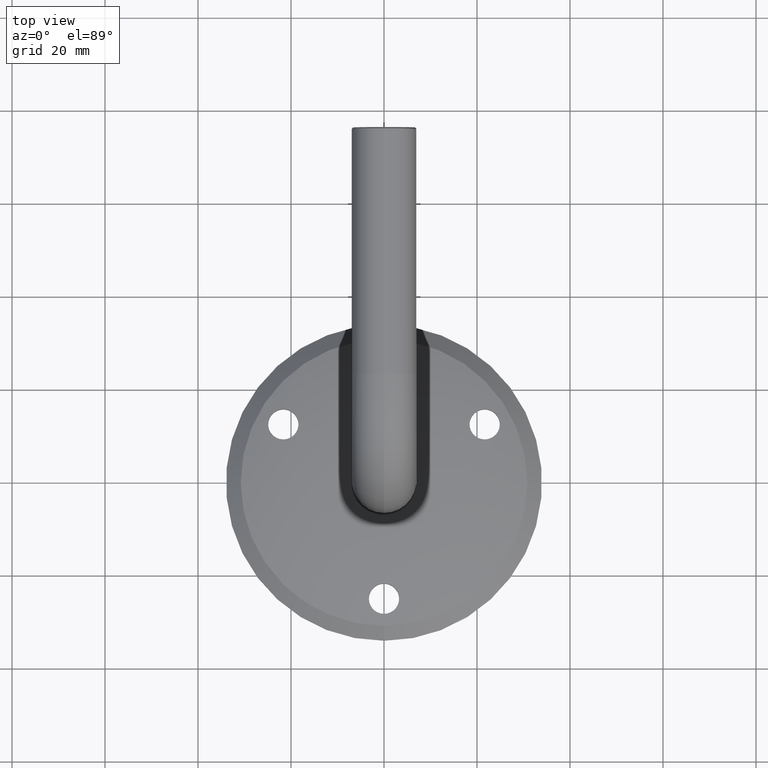
[diagram: clean part render]
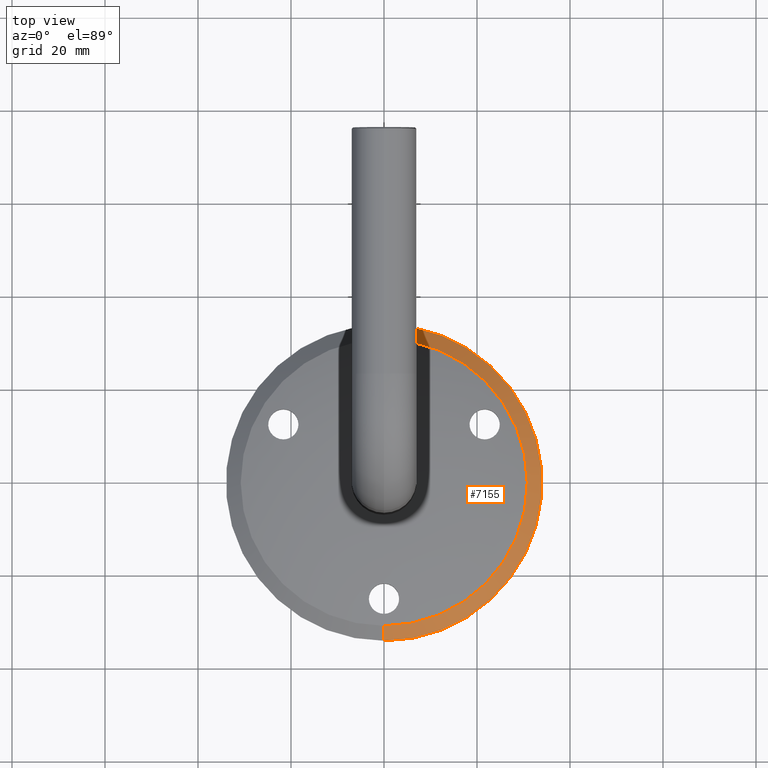
[diagram: same view with one face highlighted and labeled with its STEP entity id]
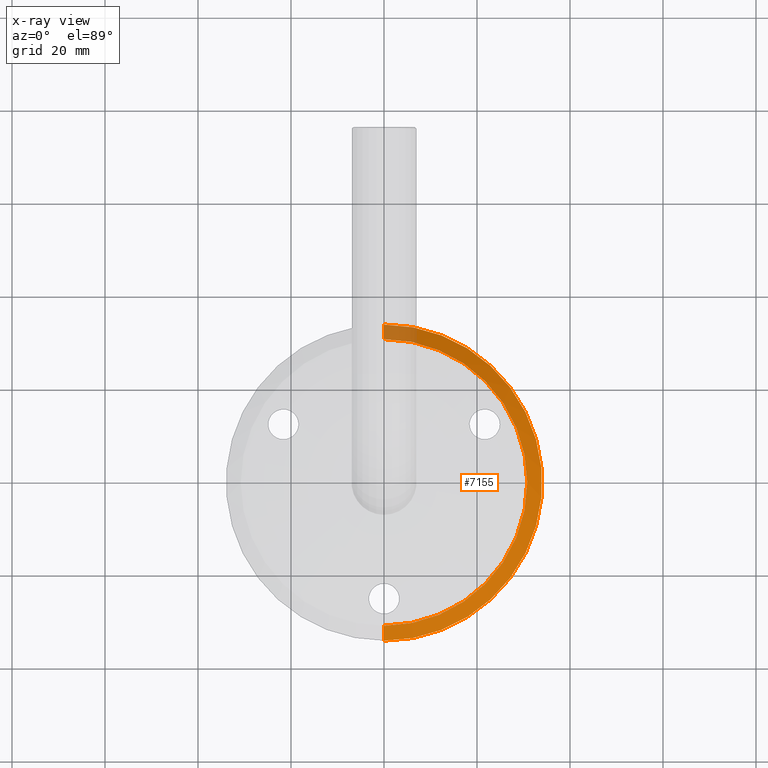
[diagram: x-ray of the same camera — body ghosted, the highlighted face saturated]
A machine part, top view. The second image highlights one B-rep face of the part: STEP entity #7155.
The next image is the same camera in x-ray: the body ghosted, the highlighted face saturated — about 7% of this face is hidden behind the body in this view.
In plain terms, the highlighted conical surface has half-angle 49.03 deg.
Its self-contained STEP definition (entity closure, byte-faithful):
#669 = AXIS2_PLACEMENT_3D ( 'NONE', #9635, #5374, #12963 ) ;
#1440 = LINE ( 'NONE', #8341, #4777 ) ;
#1762 = CARTESIAN_POINT ( 'NONE',  ( 4.163799117101000559E-15, 3.070234033247562611, 34.00000000000000000 ) ) ;
#1853 = CARTESIAN_POINT ( 'NONE',  ( 0.000000000000000000, 3.070234033247562611, 0.000000000000000000 ) ) ;
#2099 = VERTEX_POINT ( 'NONE', #2449 ) ;
#2150 = VECTOR ( 'NONE', #8184, 999.9999999999998863 ) ;
#2449 = CARTESIAN_POINT ( 'NONE',  ( 4.163799117101000559E-15, 3.070234033247562611, 34.00000000000000000 ) ) ;
#2955 = LINE ( 'NONE', #1762, #2150 ) ;
#3505 = DIRECTION ( 'NONE',  ( 0.000000000000000000, -1.000000000000000000, 0.000000000000000000 ) ) ;
#3842 = EDGE_LOOP ( 'NONE', ( #13093, #7572, #13933, #12620 ) ) ;
#3981 = DIRECTION ( 'NONE',  ( 0.000000000000000000, 0.000000000000000000, -1.000000000000000000 ) ) ;
#4491 = VERTEX_POINT ( 'NONE', #9980 ) ;
#4777 = VECTOR ( 'NONE', #11582, 999.9999999999998863 ) ;
#5031 = VERTEX_POINT ( 'NONE', #5691 ) ;
#5374 = DIRECTION ( 'NONE',  ( 0.000000000000000000, -1.000000000000000000, 0.000000000000000000 ) ) ;
#5443 = CIRCLE ( 'NONE', #669, 34.00000000000000000 ) ;
#5675 = AXIS2_PLACEMENT_3D ( 'NONE', #6621, #3505, #13173 ) ;
#5691 = CARTESIAN_POINT ( 'NONE',  ( 0.000000000000000000, 5.832423396846378338, -30.81906958466698754 ) ) ;
#6360 = EDGE_CURVE ( 'NONE', #7027, #2099, #2955, .T. ) ;
#6576 = EDGE_CURVE ( 'NONE', #5031, #7027, #13559, .T. ) ;
#6621 = CARTESIAN_POINT ( 'NONE',  ( 0.000000000000000000, 5.832423396846378338, 0.000000000000000000 ) ) ;
#7027 = VERTEX_POINT ( 'NONE', #10195 ) ;
#7155 = ADVANCED_FACE ( 'NONE', ( #12217 ), #8314, .T. ) ;
#7230 = AXIS2_PLACEMENT_3D ( 'NONE', #1853, #10519, #3981 ) ;
#7572 = ORIENTED_EDGE ( 'NONE', *, *, #6360, .T. ) ;
#8184 = DIRECTION ( 'NONE',  ( 9.246773247622443815E-17, -0.6556599193418465310, 0.7550563357582289470 ) ) ;
#8314 = CONICAL_SURFACE ( 'NONE', #7230, 34.00000000000000000, 0.8557400374771453322 ) ;
#8341 = CARTESIAN_POINT ( 'NONE',  ( 0.000000000000000000, 3.070234033247562611, -34.00000000000000000 ) ) ;
#8874 = EDGE_CURVE ( 'NONE', #5031, #4491, #1440, .T. ) ;
#9635 = CARTESIAN_POINT ( 'NONE',  ( 0.000000000000000000, 3.070234033247562611, 0.000000000000000000 ) ) ;
#9980 = CARTESIAN_POINT ( 'NONE',  ( 0.000000000000000000, 3.070234033247562611, -34.00000000000000000 ) ) ;
#10195 = CARTESIAN_POINT ( 'NONE',  ( 3.774247491956197357E-15, 5.832423396846378338, 30.81906958466698754 ) ) ;
#10231 = EDGE_CURVE ( 'NONE', #4491, #2099, #5443, .T. ) ;
#10519 = DIRECTION ( 'NONE',  ( 0.000000000000000000, -1.000000000000000000, 0.000000000000000000 ) ) ;
#11582 = DIRECTION ( 'NONE',  ( 0.000000000000000000, -0.6556599193418465310, -0.7550563357582289470 ) ) ;
#12217 = FACE_OUTER_BOUND ( 'NONE', #3842, .T. ) ;
#12620 = ORIENTED_EDGE ( 'NONE', *, *, #8874, .F. ) ;
#12963 = DIRECTION ( 'NONE',  ( 0.000000000000000000, 0.000000000000000000, -1.000000000000000000 ) ) ;
#13093 = ORIENTED_EDGE ( 'NONE', *, *, #6576, .T. ) ;
#13173 = DIRECTION ( 'NONE',  ( 0.000000000000000000, 0.000000000000000000, -1.000000000000000000 ) ) ;
#13559 = CIRCLE ( 'NONE', #5675, 30.81906958466698043 ) ;
#13933 = ORIENTED_EDGE ( 'NONE', *, *, #10231, .F. ) ;